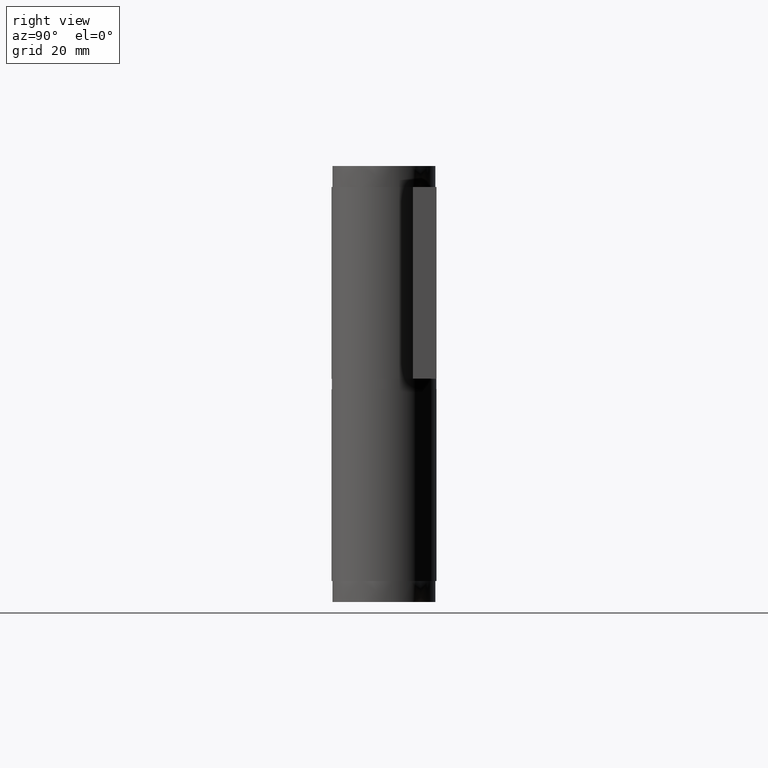
[diagram: clean part render]
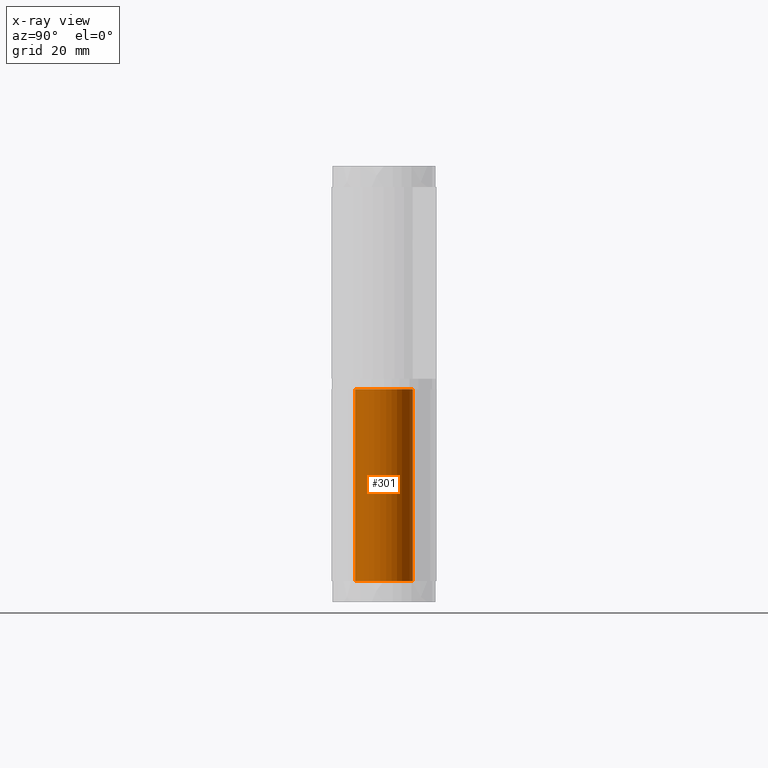
[diagram: x-ray — body ghosted, one internal face saturated and labeled with its STEP entity id]
A machine part, right view, then the same camera in x-ray: the body is ghosted and one INTERNAL B-rep face — a face not visible from any outside direction — is saturated and labeled: STEP entity #301.
In plain terms, the highlighted face is a freeform B-spline surface patch.
Its self-contained STEP definition (entity closure, byte-faithful):
#86=CARTESIAN_POINT('',(-4.611398242398940,2.997500000000000,0.0));
#87=VERTEX_POINT('',#86);
#93=CARTESIAN_POINT('',(-7.105427E-015,5.500000000000000,0.0));
#94=VERTEX_POINT('',#93);
#95=CARTESIAN_POINT('',(0.0,5.500000000000000,0.0));
#96=CARTESIAN_POINT('',(4.278255285808725,5.499999999999999,0.0));
#97=CARTESIAN_POINT('',(5.330915666879423,1.353269430904104,0.0));
#98=CARTESIAN_POINT('',(6.383576047950124,-2.793461138191798,0.0));
#99=CARTESIAN_POINT('',(2.623332803896608,-4.834058853592906,0.0));
#100=CARTESIAN_POINT('',(-1.136910440156906,-6.874656568994015,0.0));
#101=CARTESIAN_POINT('',(-4.039978906660799,-3.732100003179954,0.0));
#102=CARTESIAN_POINT('',(-6.943047373164695,-0.589543437365889,0.0));
#103=CARTESIAN_POINT('',(-4.611398242398940,2.997499999999995,0.0));
#111=(BOUNDED_CURVE()B_SPLINE_CURVE(2,(#95,#96,#97,#98,#99,#100,#101,#102,#103),.UNSPECIFIED.,.F.,.U.)B_SPLINE_CURVE_WITH_KNOTS((3,2,2,2,3),(0.0,0.250000000000000,0.500000000000000,0.750000000000000,1.0),.UNSPECIFIED.)CURVE()GEOMETRIC_REPRESENTATION_ITEM()RATIONAL_B_SPLINE_CURVE((1.0,0.789319006307687,1.0,0.789319006307687,1.0,0.789319006307687,1.0,0.789319006307687,1.0))REPRESENTATION_ITEM(''));
#112=EDGE_CURVE('',#94,#87,#111,.T.);
#136=CARTESIAN_POINT('',(-7.105427E-015,5.500000000000000,36.500000000000000));
#137=VERTEX_POINT('',#136);
#143=CARTESIAN_POINT('',(-4.611398242398940,2.997500000000000,36.500000000000000));
#144=VERTEX_POINT('',#143);
#145=CARTESIAN_POINT('',(0.0,5.500000000000000,36.500000000000000));
#146=CARTESIAN_POINT('',(4.278255285808725,5.499999999999999,36.500000000000007));
#147=CARTESIAN_POINT('',(5.330915666879423,1.353269430904104,36.500000000000000));
#148=CARTESIAN_POINT('',(6.383576047950124,-2.793461138191798,36.500000000000007));
#149=CARTESIAN_POINT('',(2.623332803896608,-4.834058853592906,36.500000000000000));
#150=CARTESIAN_POINT('',(-1.136910440156906,-6.874656568994015,36.500000000000007));
#151=CARTESIAN_POINT('',(-4.039978906660799,-3.732100003179954,36.500000000000000));
#152=CARTESIAN_POINT('',(-6.943047373164695,-0.589543437365889,36.500000000000007));
#153=CARTESIAN_POINT('',(-4.611398242398940,2.997499999999995,36.500000000000000));
#161=(BOUNDED_CURVE()B_SPLINE_CURVE(2,(#145,#146,#147,#148,#149,#150,#151,#152,#153),.UNSPECIFIED.,.F.,.U.)B_SPLINE_CURVE_WITH_KNOTS((3,2,2,2,3),(0.0,0.250000000000000,0.500000000000000,0.750000000000000,1.0),.UNSPECIFIED.)CURVE()GEOMETRIC_REPRESENTATION_ITEM()RATIONAL_B_SPLINE_CURVE((1.0,0.789319006307687,1.0,0.789319006307687,1.0,0.789319006307687,1.0,0.789319006307687,1.0))REPRESENTATION_ITEM(''));
#162=EDGE_CURVE('',#137,#144,#161,.T.);
#261=CARTESIAN_POINT('',(-4.611398242398940,2.997500000000000,36.500000000000000));
#262=CARTESIAN_POINT('',(-4.611398242398940,2.997500000000000,0.0));
#263=QUASI_UNIFORM_CURVE('',1,(#261,#262),.UNSPECIFIED.,.F.,.U.);
#264=EDGE_CURVE('',#144,#87,#263,.T.);
#269=CARTESIAN_POINT('',(-4.477635350959759,3.193866256410161,37.412500000000009));
#270=CARTESIAN_POINT('',(-4.477635350959759,3.193866256410161,-0.935312500000002));
#271=CARTESIAN_POINT('',(-8.516937774726717,-2.469026887464072,37.412500000000016));
#272=CARTESIAN_POINT('',(-8.516937774726717,-2.469026887464072,-0.935312500000002));
#273=CARTESIAN_POINT('',(-2.075161402789175,-5.093496358335210,37.412500000000009));
#274=CARTESIAN_POINT('',(-2.075161402789175,-5.093496358335210,-0.935312500000002));
#275=CARTESIAN_POINT('',(4.366614969148367,-7.717965829206346,37.412500000000016));
#276=CARTESIAN_POINT('',(4.366614969148367,-7.717965829206346,-0.935312500000002));
#277=CARTESIAN_POINT('',(5.434765658630417,-0.844584060808316,37.412500000000009));
#278=CARTESIAN_POINT('',(5.434765658630417,-0.844584060808316,-0.935312500000002));
#279=CARTESIAN_POINT('',(6.502916348112466,6.028797707589714,37.412500000000016));
#280=CARTESIAN_POINT('',(6.502916348112466,6.028797707589714,-0.935312500000002));
#281=CARTESIAN_POINT('',(-0.431525026503156,5.483045335532200,37.412500000000009));
#282=CARTESIAN_POINT('',(-0.431525026503156,5.483045335532200,-0.935312500000002));
#290=(BOUNDED_SURFACE()B_SPLINE_SURFACE(1,2,((#269,#271,#273,#275,#277,#279,#281),(#270,#272,#274,#276,#278,#280,#282)),.UNSPECIFIED.,.F.,.F.,.U.)B_SPLINE_SURFACE_WITH_KNOTS((2,2),(3,2,2,3),(0.0,38.347812500000011),(0.0,10.651010128609400,21.302020257218800,31.953030385828200),.UNSPECIFIED.)GEOMETRIC_REPRESENTATION_ITEM()RATIONAL_B_SPLINE_SURFACE(((1.0,0.620235491268260,1.0,0.620235491268260,1.0,0.620235491268260,1.0),(1.0,0.620235491268260,1.0,0.620235491268260,1.0,0.620235491268260,1.0)))REPRESENTATION_ITEM('')SURFACE());
#291=ORIENTED_EDGE('',*,*,#112,.T.);
#292=ORIENTED_EDGE('',*,*,#264,.F.);
#293=ORIENTED_EDGE('',*,*,#162,.F.);
#294=CARTESIAN_POINT('',(-7.105427E-015,5.500000000000000,36.500000000000000));
#295=CARTESIAN_POINT('',(-7.105427E-015,5.500000000000000,0.0));
#296=QUASI_UNIFORM_CURVE('',1,(#294,#295),.UNSPECIFIED.,.F.,.U.);
#297=EDGE_CURVE('',#137,#94,#296,.T.);
#298=ORIENTED_EDGE('',*,*,#297,.T.);
#299=EDGE_LOOP('',(#291,#292,#293,#298));
#300=FACE_OUTER_BOUND('',#299,.T.);
#301=ADVANCED_FACE('',(#300),#290,.F.);